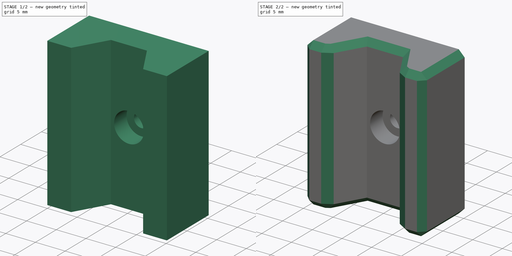
[diagram: build sequence overview — one tinted view per stage of 2, left to right]
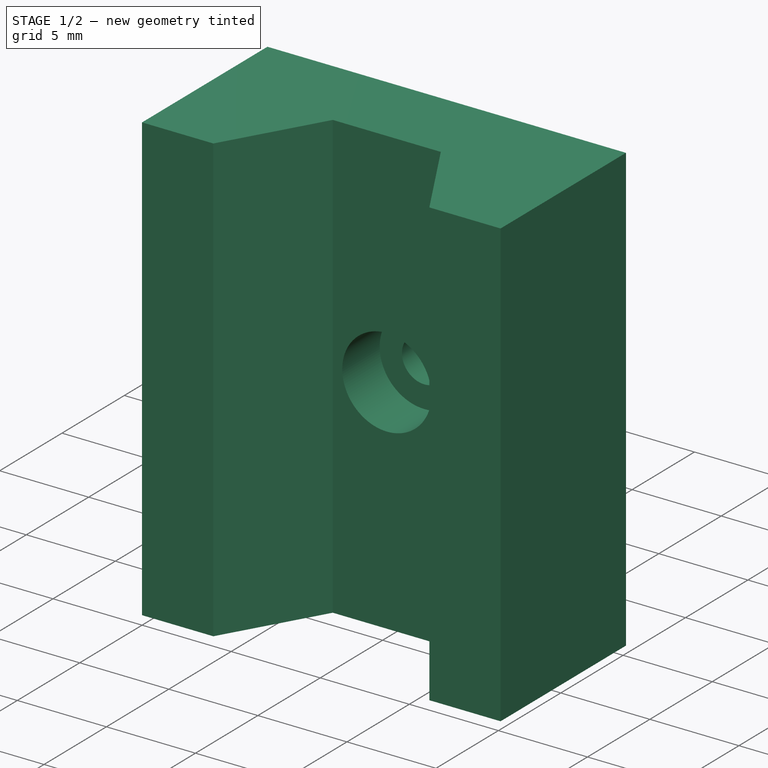
[diagram: stage 1 of 2 — iso view after this stage's code; geometry added in this stage tinted green]
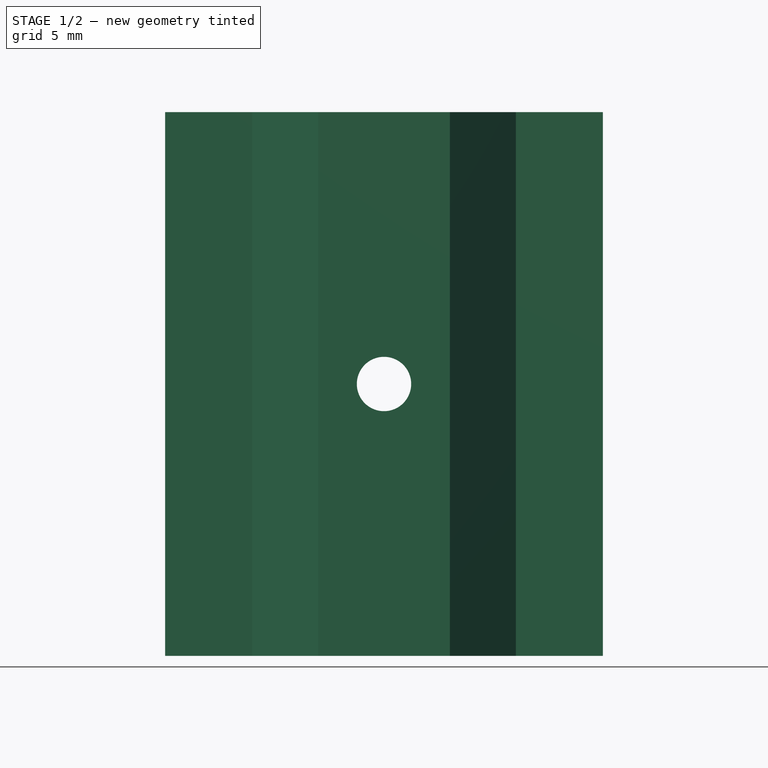
[diagram: stage 1 of 2 — front view after this stage's code; geometry added in this stage tinted green]
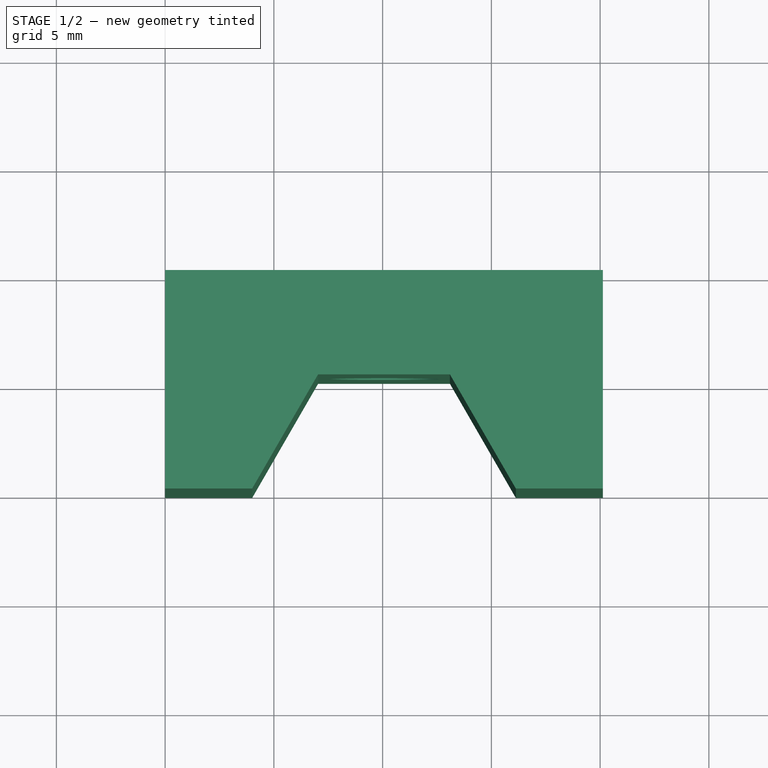
[diagram: stage 1 of 2 — top view after this stage's code; geometry added in this stage tinted green]
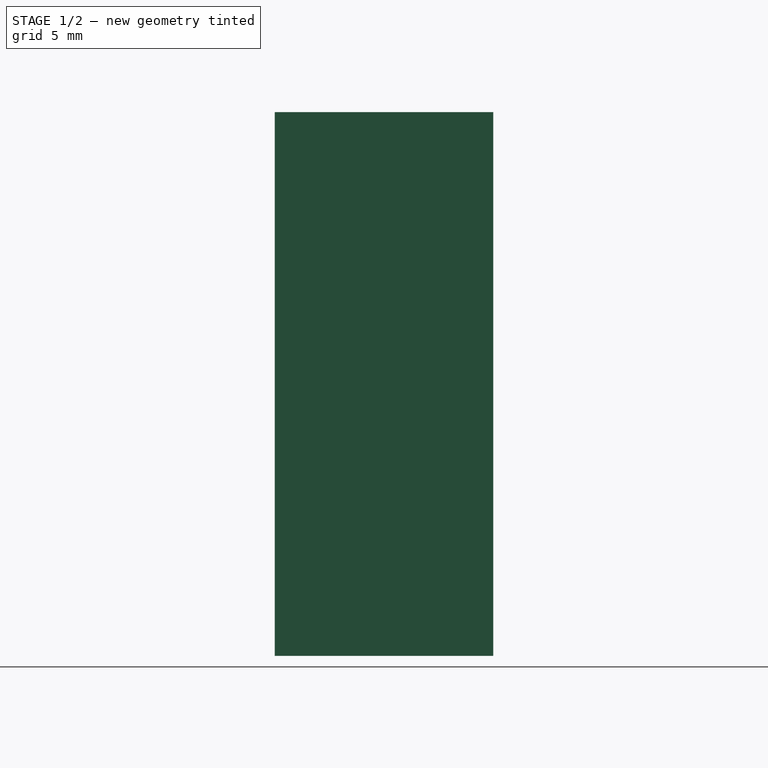
[diagram: stage 1 of 2 — right view after this stage's code; geometry added in this stage tinted green]
FCSTD DOCUMENT  (FreeCAD 1.0R39109 (Git))
Label: MagneticToolHolderSkadis
License: All rights reserved
LicenseURL: https://en.wikipedia.org/wiki/All_rights_reserved
objects: Sketcher::SketchObject×3, PartDesign::Hole×2, PartDesign::Pad×1, PartDesign::Chamfer×1, PartDesign::Body×1
note: 19 computed .brp shape members not serialized (recipe doc carries the construction recipe); baked Part::Feature solids carry a one-line shape summary decoded from their .brp

FEATURE [Sketcher::SketchObject] Sketch
  ArcFitTolerance = 1e-06
  AttachmentSupport = -> [XY_Plane]
  FullyConstrained = true
  MakeInternals = false
  MapMode = 5
  sketch-geometry (12):
    g0: LineSegment StartX=16.1244 StartY=0 StartZ=0 EndX=13.0933 EndY=5.25 EndZ=0
    g1: LineSegment StartX=13.0933 StartY=5.25 StartZ=0 EndX=7.03109 EndY=5.25 EndZ=0
    g2: LineSegment StartX=7.03109 StartY=5.25 StartZ=0 EndX=4 EndY=-9e-16 EndZ=0
    g3: LineSegment [constr] StartX=4 StartY=-5e-16 StartZ=0 EndX=7.03109 EndY=-5.25 EndZ=0
    g4: LineSegment [constr] StartX=7.03109 StartY=-5.25 StartZ=0 EndX=13.0933 EndY=-5.25 EndZ=0
    g5: LineSegment [constr] StartX=13.0933 StartY=-5.25 StartZ=0 EndX=16.1244 EndY=0 EndZ=0
    g6: Circle [constr] CenterX=10.0622 CenterY=-2.386e-13 CenterZ=0 NormalX=0 NormalY=0 NormalZ=1 AngleXU=0 Radius=6.06218
    g7: LineSegment StartX=4 StartY=-5e-16 StartZ=0 EndX=0 EndY=0 EndZ=0
    g8: LineSegment StartX=0 StartY=0 StartZ=0 EndX=0 EndY=10.05 EndZ=0
    g9: LineSegment StartX=0 StartY=10.05 StartZ=0 EndX=20.1244 EndY=10.05 EndZ=0
    g10: LineSegment StartX=20.1244 StartY=10.05 StartZ=0 EndX=20.1244 EndY=0 EndZ=0
    g11: LineSegment StartX=20.1244 StartY=0 StartZ=0 EndX=16.1244 EndY=0 EndZ=0
  constraints (30):
    c: Coincident(g0,g1)
    c: Coincident(g1,g2)
    c: Coincident(g2,g3)
    c: Coincident(g3,g4)
    c: Coincident(g4,g5)
    c: Coincident(g5,g0)
    c: Equal(g0, g1-g5) x5
    c: PointOnObject(g0,g6)
    c: PointOnObject(g1,g6)
    c: PointOnObject(g2,g6)
    c: PointOnObject(g3,g6)
    c: PointOnObject(g4,g6)
    c: PointOnObject(g5,g6)
    c: Horizontal(g1)
    c: DistanceY(g4,g0) = 10.5
    c: PointOnObject(g0,g-1)
    c: Coincident(g2,g7)
    c: Coincident(g7,g-1)
    c: Coincident(g7,g8)
    c: PointOnObject(g8,g-2)
    c: Coincident(g8,g9)
    c: Horizontal(g9)
    c: Coincident(g9,g10)
    c: PointOnObject(g10,g-1)
    c: Vertical(g10)
    c: Coincident(g10,g11)
    c: Coincident(g11,g0)
    c: Equal(g7,g11)
    c: DistanceY(g0,g9) = 4.8
    c: DistanceX(g11,g11) = 4
FEATURE [PartDesign::Pad] Pad
  Direction = (0,0,1)
  Length = 25
  Length2 = 10
  Midplane = true
  Profile = -> Sketch
  ReferenceAxis = -> Sketch [N_Axis]
  Refine = true
  Suppressed = false
  Type = 0
FEATURE [Sketcher::SketchObject] Sketch001
  ArcFitTolerance = 1e-06
  AttachmentSupport = -> [Pad]
  ExternalGeometry = -> [Pad]
  FullyConstrained = true
  MakeInternals = false
  MapMode = 5
  Placement = pos=(0,5.25,0) rot=(1,0,0;1.5708rad)
  sketch-geometry (3):
    g0: Circle CenterX=10.0622 CenterY=0 CenterZ=0 NormalX=0 NormalY=0 NormalZ=1 AngleXU=0 Radius=1.25
    g1: LineSegment [constr] StartX=0 StartY=0 StartZ=0 EndX=10.0622 EndY=0 EndZ=0
    g2: LineSegment [constr] StartX=10.0622 StartY=0 StartZ=0 EndX=20.1244 EndY=-2.1e-15 EndZ=0
  constraints (7):
    c: Diameter(g0) = 2.5
    c: PointOnObject(g0,g-1)
    c: Coincident(g-1,g1)
    c: Coincident(g1,g0)
    c: Coincident(g1,g2)
    c: Symmetric(g-3,g-3,g2)
    c: Equal(g2,g1)
FEATURE [PartDesign::Hole] Hole
  BaseFeature = -> Pad
  CustomThreadClearance = 0
  Depth = 25
  DepthType = 0
  Diameter = 2.5
  DrillForDepth = false
  DrillPoint = 1
  DrillPointAngle = 118
  HoleCutCountersinkAngle = 90
  HoleCutCustomValues = false
  HoleCutDepth = 3
  HoleCutDiameter = 5
  HoleCutType = 1
  ModelThread = false
  Profile = -> Sketch001
  Refine = true
  Suppressed = false
  Tapered = false
  TaperedAngle = 90
  ThreadClass = 0
  ThreadDepth = 25
  ThreadDepthType = 0
  ThreadDirection = 0
  ThreadFit = 0
  ThreadSize = 0
  ThreadType = 0
  Threaded = false
  UseCustomThreadClearance = false
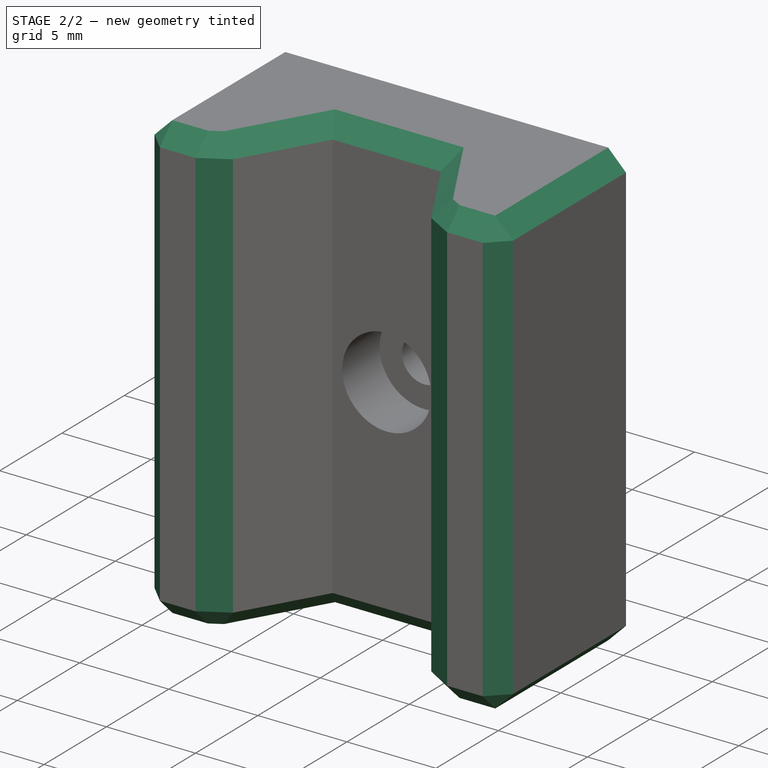
[diagram: stage 2 of 2 — iso view after this stage's code; geometry added in this stage tinted green]
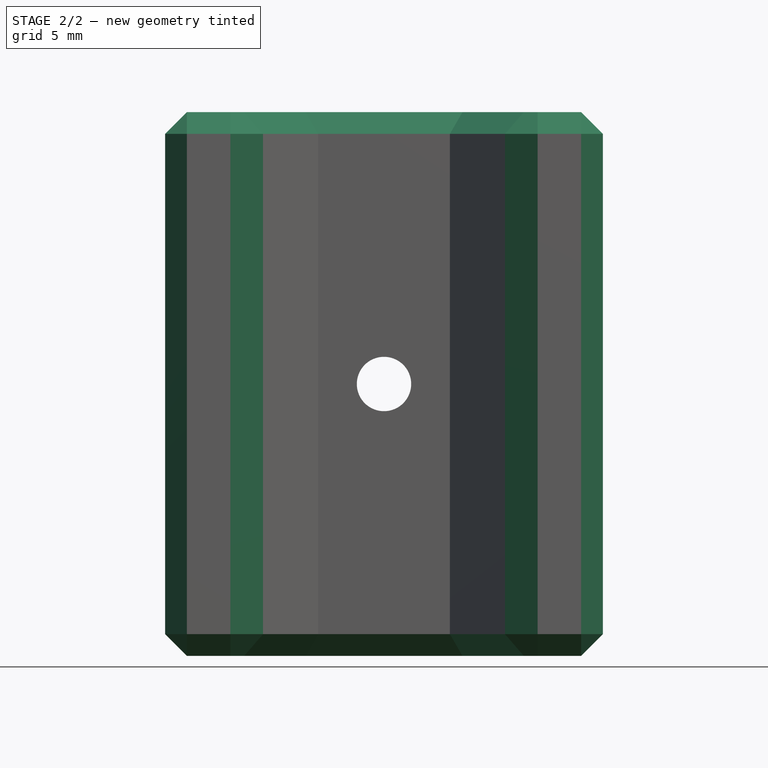
[diagram: stage 2 of 2 — front view after this stage's code; geometry added in this stage tinted green]
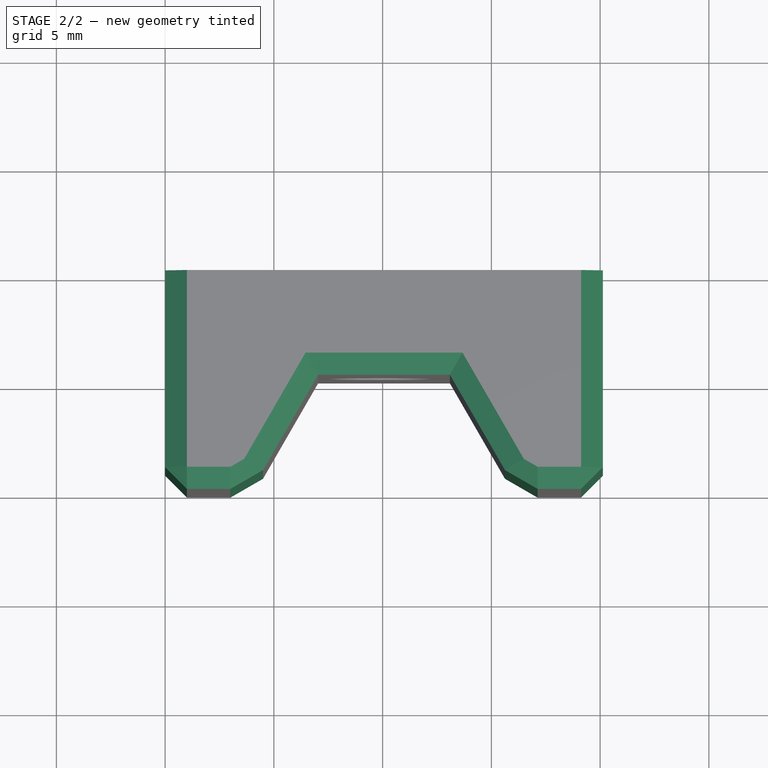
[diagram: stage 2 of 2 — top view after this stage's code; geometry added in this stage tinted green]
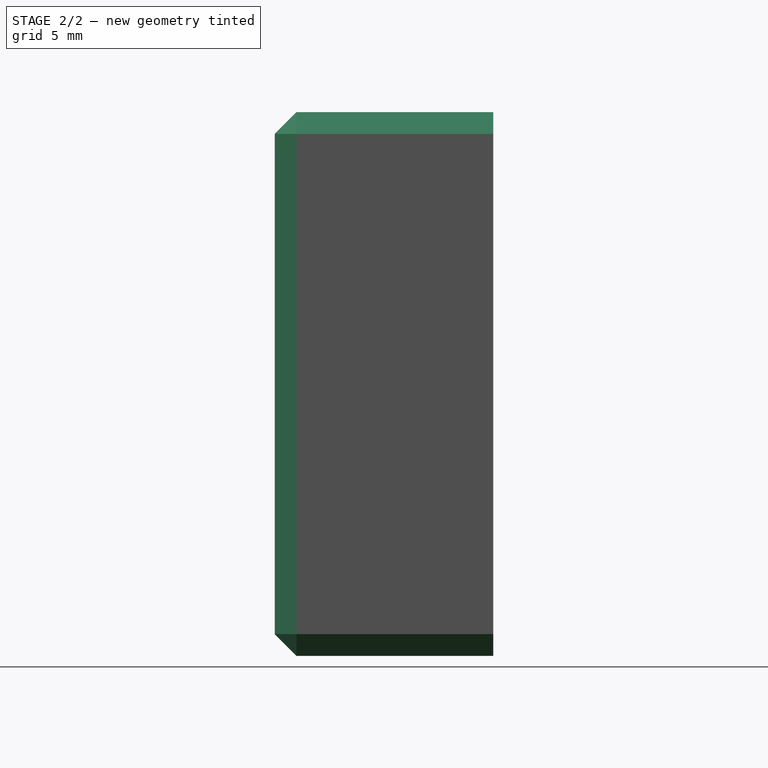
[diagram: stage 2 of 2 — right view after this stage's code; geometry added in this stage tinted green]
FEATURE [Sketcher::SketchObject] Sketch002
  ArcFitTolerance = 1e-06
  AttachmentOffset = pos=(0,0,-0.4) rot=(0,0,1;0rad)
  AttachmentSupport = -> [Hole]
  ExternalGeometry = -> [Hole]
  FullyConstrained = true
  MakeInternals = false
  MapMode = 5
  Placement = pos=(0,5.65,-1e-16) rot=(1,0,0;1.5708rad)
  sketch-geometry (7):
    g0: LineSegment [constr] StartX=10.0622 StartY=12.5 StartZ=0 EndX=10.0622 EndY=7.5 EndZ=0
    g1: LineSegment [constr] StartX=10.0622 StartY=0 StartZ=0 EndX=10.0622 EndY=-7.5 EndZ=0
    g2: LineSegment [constr] StartX=10.0622 StartY=-7.5 StartZ=0 EndX=10.0622 EndY=-12.5 EndZ=0
    g3: LineSegment [constr] StartX=10.0622 StartY=7.5 StartZ=0 EndX=10.0622 EndY=2.5 EndZ=0
    g4: LineSegment [constr] StartX=10.0622 StartY=2.5 StartZ=0 EndX=10.0622 EndY=0 EndZ=0
    g5: Circle CenterX=10.0622 CenterY=7.5 CenterZ=0 NormalX=0 NormalY=0 NormalZ=1 AngleXU=0 Radius=3
    g6: Circle CenterX=10.0622 CenterY=-7.5 CenterZ=0 NormalX=0 NormalY=0 NormalZ=1 AngleXU=0 Radius=3
  constraints (19):
    c: Coincident(g4,g-5)
    c: Coincident(g4,g1)
    c: Coincident(g0,g3)
    c: Coincident(g1,g2)
    c: PointOnObject(g0,g-3)
    c: PointOnObject(g2,g-4)
    c: Vertical(g2)
    c: Vertical(g1)
    c: Vertical(g0)
    c: Coincident(g3,g4)
    c: Vertical(g3)
    c: Vertical(g4)
    c: PointOnObject(g3,g-5)
    c: Equal(g0,g3)
    c: Equal(g0,g2)
    c: Diameter(g5) = 6
    c: Coincident(g5,g0)
    c: Coincident(g6,g1)
    c: Equal(g6,g5)
FEATURE [PartDesign::Hole] Hole001
  BaseFeature = -> Hole
  CustomThreadClearance = 0
  Depth = 3.4
  DepthType = 0
  Diameter = 6.5
  DrillForDepth = false
  DrillPoint = 0
  DrillPointAngle = 118
  HoleCutCountersinkAngle = 90
  HoleCutCustomValues = false
  HoleCutDepth = 0
  HoleCutDiameter = 6.1
  HoleCutType = 0
  ModelThread = false
  Profile = -> Sketch002
  Refine = true
  Suppressed = false
  Tapered = false
  TaperedAngle = 90
  ThreadClass = 0
  ThreadDepth = 3.4
  ThreadDepthType = 0
  ThreadDirection = 0
  ThreadFit = 0
  ThreadSize = 0
  ThreadType = 0
  Threaded = false
  UseCustomThreadClearance = false
FEATURE [PartDesign::Chamfer] Chamfer
  Angle = 45
  Base = -> Hole001 [Edge18,Edge17,Edge9,Edge4,Edge7,Edge21,Edge19,Edge23,Edge26,Edge5,Edge1,Edge6,Edge16,Edge3,Edge8,Edge12,Edge13,Edge14]
  BaseFeature = -> Hole001
  ChamferType = 0
  FlipDirection = false
  Refine = true
  Size = 1
  Size2 = 1
  SupportTransform = false
  Suppressed = false
  UseAllEdges = false
FEATURE [PartDesign::Body] Body
  AllowCompound = false
  Group = -> [Sketch,Pad,Sketch001,Hole,Sketch002,Hole001,Chamfer]
  Origin = -> Origin
  Tip = -> Chamfer
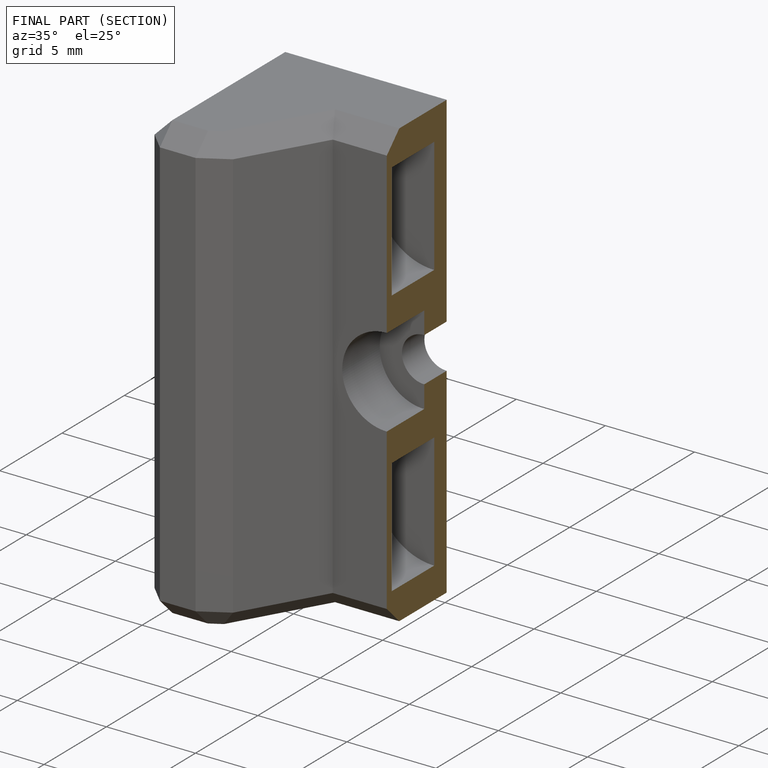
[diagram: finished part — half-section view (interior)]
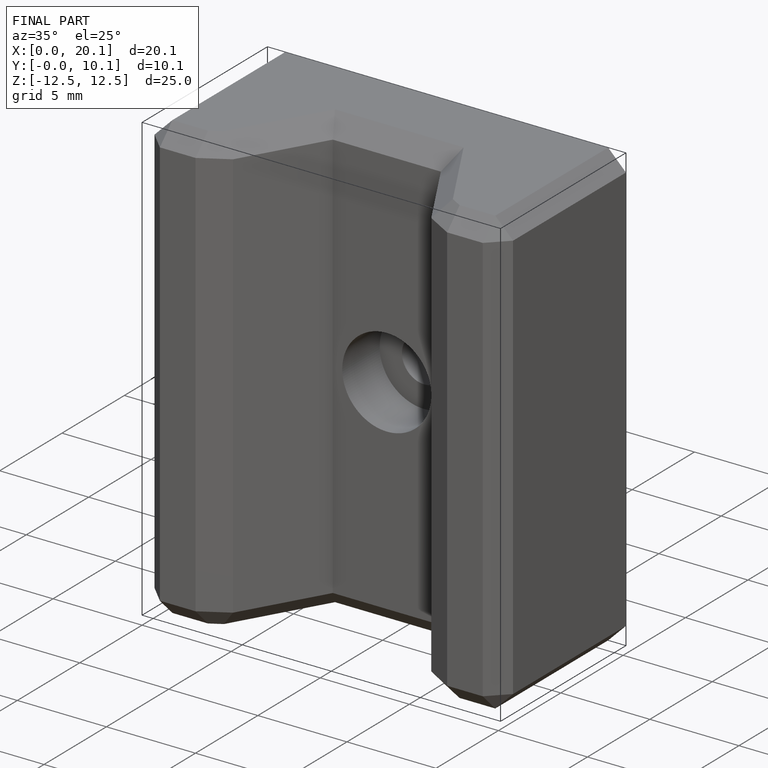
[diagram: finished part — iso view with bounding-box wireframe]
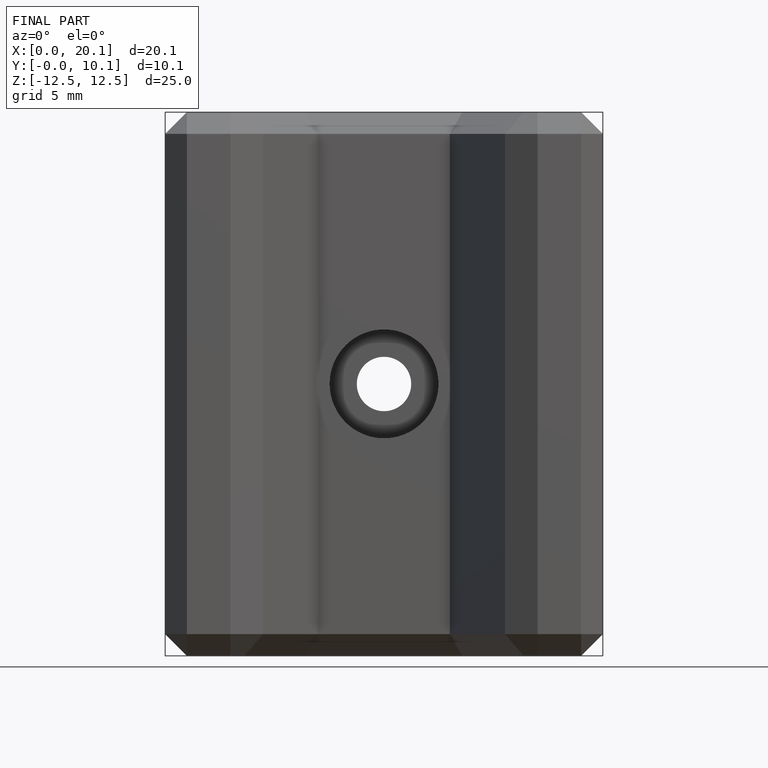
[diagram: finished part — front view with bounding-box wireframe]
